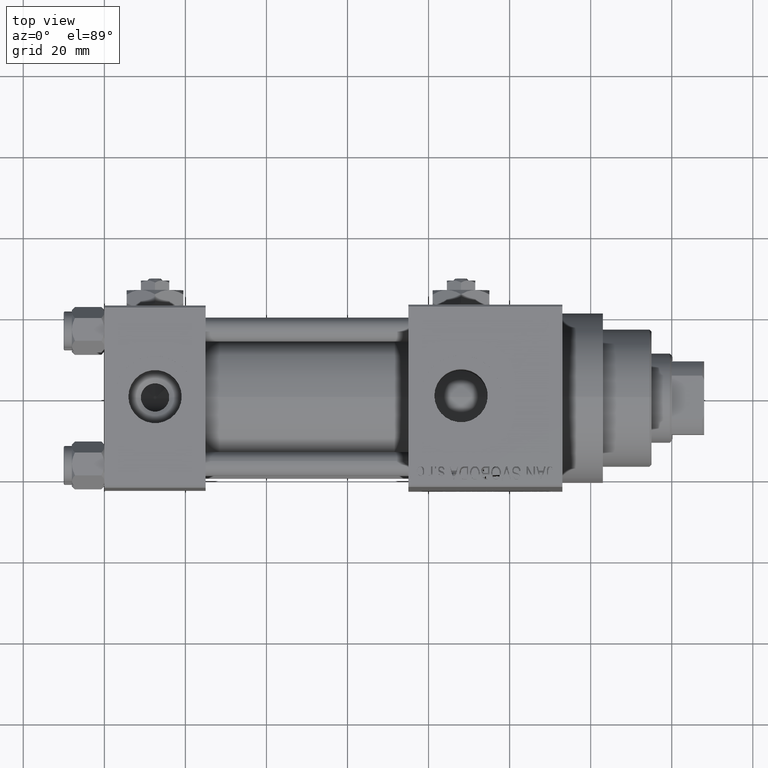
[diagram: clean part render]
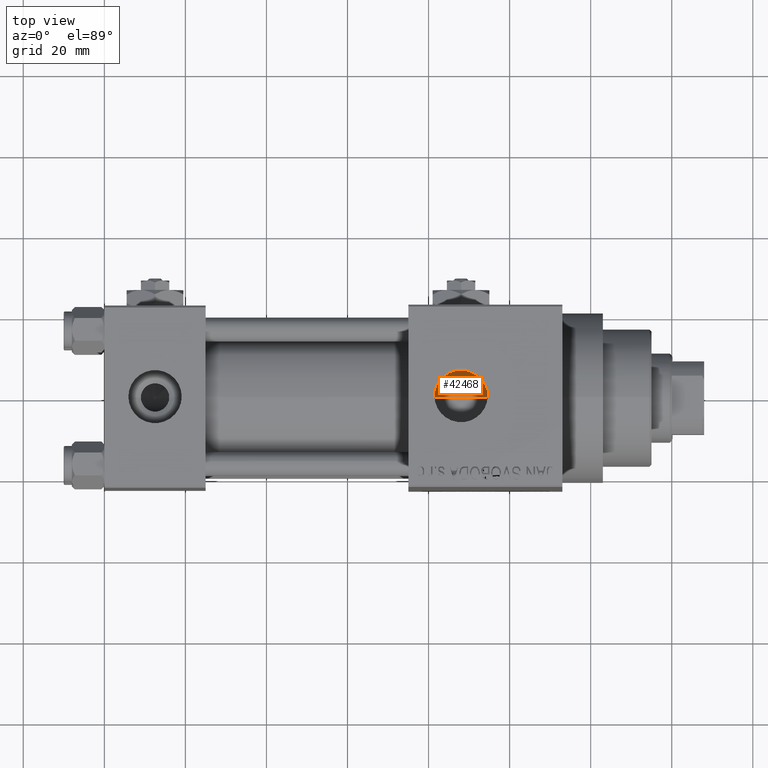
[diagram: same view with one face highlighted and labeled with its STEP entity id]
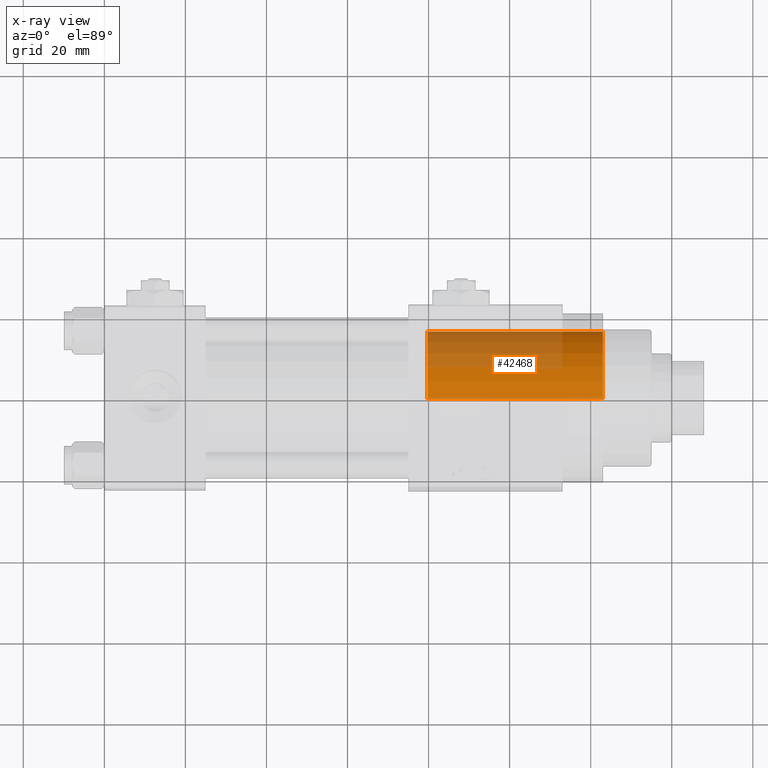
[diagram: x-ray of the same camera — body ghosted, the highlighted face saturated]
A machine part, top view. The second image highlights one B-rep face of the part: STEP entity #42468.
The next image is the same camera in x-ray: the body ghosted, the highlighted face saturated — about 45% of this face is hidden behind the body in this view.
In plain terms, the highlighted cylindrical surface (partial cylindrical patch) has radius 16.5 mm, axis along (-1, 0, 0).
Its self-contained STEP definition (entity closure, byte-faithful):
#2087 = ORIENTED_EDGE ( 'NONE', *, *, #48966, .F. ) ;
#3506 = CARTESIAN_POINT ( 'NONE',  ( 16.50000000000000000, 2.020667218593133100E-15, 43.25999999999999801 ) ) ;
#5886 = CARTESIAN_POINT ( 'NONE',  ( -16.50000000000000000, 0.000000000000000000, 43.25999999999999801 ) ) ;
#8912 = EDGE_CURVE ( 'NONE', #27002, #42861, #48921, .T. ) ;
#9505 = ORIENTED_EDGE ( 'NONE', *, *, #27685, .T. ) ;
#10744 = CARTESIAN_POINT ( 'NONE',  ( 16.50000000000000000, 2.020667218593133100E-15, 43.25999999999999801 ) ) ;
#11459 = DIRECTION ( 'NONE',  ( -0.000000000000000000, -0.000000000000000000, -1.000000000000000000 ) ) ;
#12061 = CARTESIAN_POINT ( 'NONE',  ( 16.50000000000000000, 2.020667218593133100E-15, 0.000000000000000000 ) ) ;
#12123 = CYLINDRICAL_SURFACE ( 'NONE', #48815, 16.50000000000000000 ) ;
#12322 = CARTESIAN_POINT ( 'NONE',  ( -16.50000000000000000, 0.000000000000000000, 0.000000000000000000 ) ) ;
#14435 = ORIENTED_EDGE ( 'NONE', *, *, #27843, .F. ) ;
#14874 = DIRECTION ( 'NONE',  ( -0.000000000000000000, -0.000000000000000000, -1.000000000000000000 ) ) ;
#15103 = CIRCLE ( 'NONE', #47683, 16.50000000000000000 ) ;
#17489 = AXIS2_PLACEMENT_3D ( 'NONE', #20554, #39717, #43197 ) ;
#18834 = CARTESIAN_POINT ( 'NONE',  ( 0.000000000000000000, 0.000000000000000000, 0.000000000000000000 ) ) ;
#19040 = VERTEX_POINT ( 'NONE', #10744 ) ;
#20137 = ORIENTED_EDGE ( 'NONE', *, *, #8912, .T. ) ;
#20554 = CARTESIAN_POINT ( 'NONE',  ( 0.000000000000000000, 0.000000000000000000, 43.25999999999999801 ) ) ;
#22806 = CARTESIAN_POINT ( 'NONE',  ( 0.000000000000000000, 0.000000000000000000, 43.25999999999999801 ) ) ;
#26770 = DIRECTION ( 'NONE',  ( -0.000000000000000000, -0.000000000000000000, -1.000000000000000000 ) ) ;
#27002 = VERTEX_POINT ( 'NONE', #5886 ) ;
#27685 = EDGE_CURVE ( 'NONE', #42861, #48082, #15103, .T. ) ;
#27843 = EDGE_CURVE ( 'NONE', #27002, #19040, #38923, .T. ) ;
#29785 = DIRECTION ( 'NONE',  ( 0.000000000000000000, 0.000000000000000000, 1.000000000000000000 ) ) ;
#32280 = VECTOR ( 'NONE', #11459, 1000.000000000000000 ) ;
#33991 = CARTESIAN_POINT ( 'NONE',  ( -16.50000000000000000, 0.000000000000000000, 43.25999999999999801 ) ) ;
#34609 = EDGE_LOOP ( 'NONE', ( #2087, #14435, #20137, #9505 ) ) ;
#37979 = DIRECTION ( 'NONE',  ( -1.000000000000000000, 0.000000000000000000, 0.000000000000000000 ) ) ;
#38923 = CIRCLE ( 'NONE', #17489, 16.50000000000000000 ) ;
#39717 = DIRECTION ( 'NONE',  ( 0.000000000000000000, 0.000000000000000000, 1.000000000000000000 ) ) ;
#42468 = ADVANCED_FACE ( 'NONE', ( #46196 ), #12123, .T. ) ;
#42861 = VERTEX_POINT ( 'NONE', #12322 ) ;
#43197 = DIRECTION ( 'NONE',  ( 1.000000000000000000, 0.000000000000000000, 0.000000000000000000 ) ) ;
#44721 = DIRECTION ( 'NONE',  ( 1.000000000000000000, 0.000000000000000000, 0.000000000000000000 ) ) ;
#45527 = LINE ( 'NONE', #3506, #32280 ) ;
#46196 = FACE_OUTER_BOUND ( 'NONE', #34609, .T. ) ;
#47683 = AXIS2_PLACEMENT_3D ( 'NONE', #18834, #29785, #44721 ) ;
#48082 = VERTEX_POINT ( 'NONE', #12061 ) ;
#48118 = VECTOR ( 'NONE', #26770, 1000.000000000000000 ) ;
#48815 = AXIS2_PLACEMENT_3D ( 'NONE', #22806, #14874, #37979 ) ;
#48921 = LINE ( 'NONE', #33991, #48118 ) ;
#48966 = EDGE_CURVE ( 'NONE', #19040, #48082, #45527, .T. ) ;